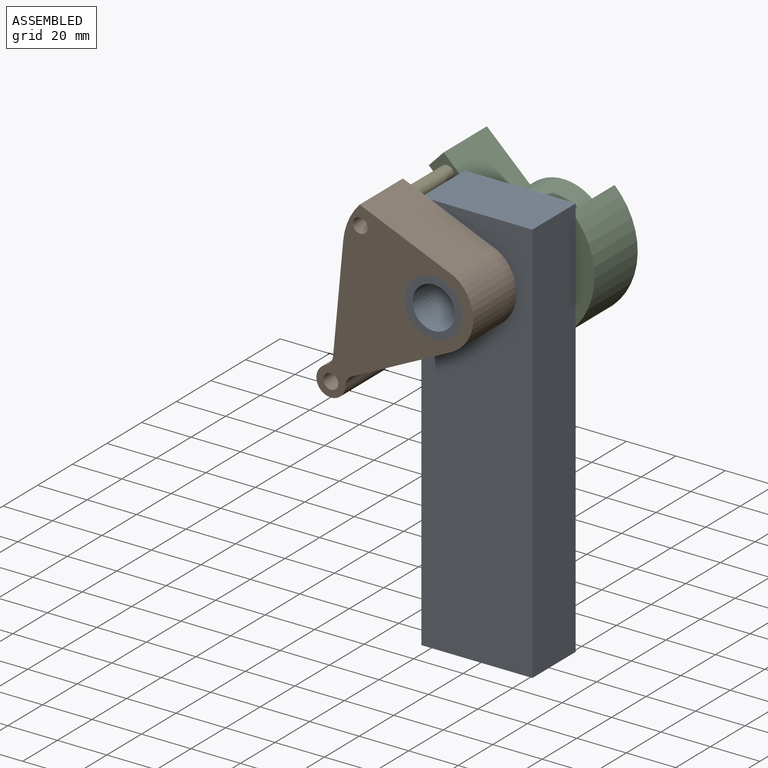
[diagram: assembled view]
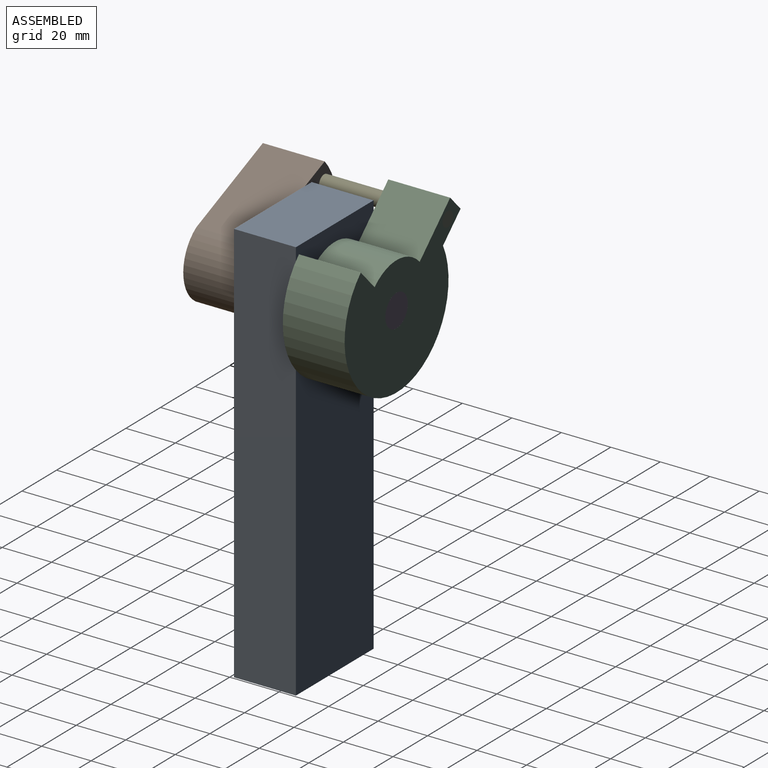
[diagram: assembled view, second angle]
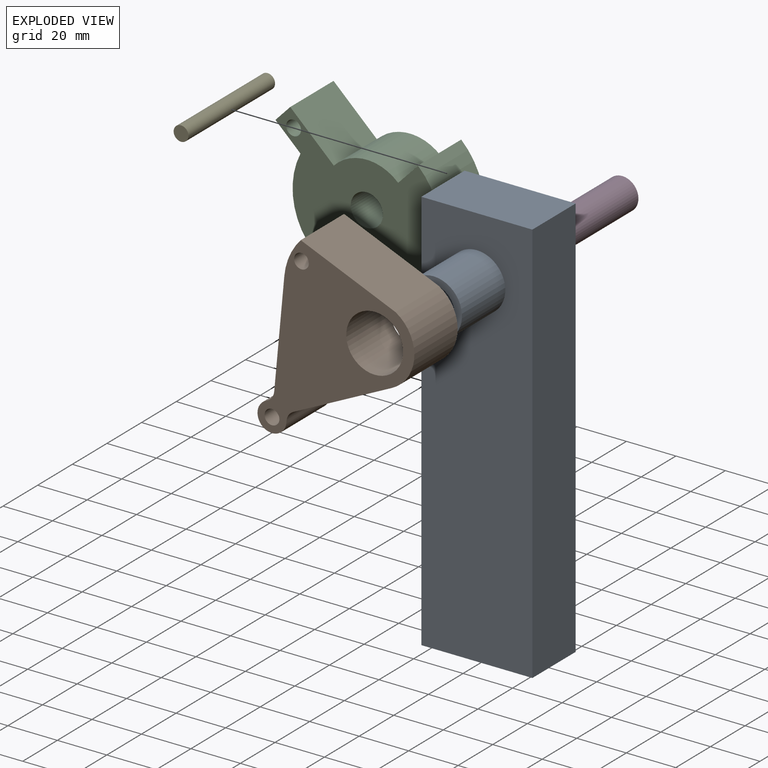
[diagram: exploded view]
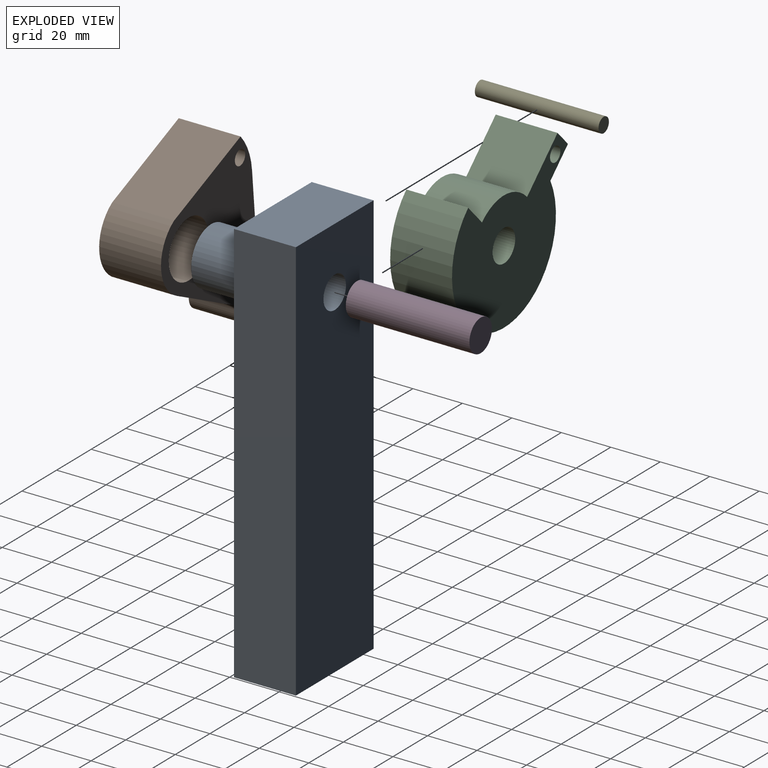
[diagram: exploded view, second angle]
ASSEMBLY  parts=5 mates=3
PART A: 11 faces, bbox 44.9x50x163.8 mm
  f0: plane 17x17mm, normal (0,-1,0), area 94.2mm2, adj f5,f8
  f1: plane 163.83x25mm, normal (1,0,0), area 4095.6mm2, adj f2,f4,f6,f7
  f2: plane 44.87x25mm, normal (0,0,1), area 1121.8mm2, adj f1,f3,f6,f7
  f3: plane 163.83x25mm, normal (-1,0,0), area 4095.6mm2, adj f2,f4,f6,f7
  f4: plane 44.87x25mm, normal (0,0,-1), area 1121.8mm2, adj f1,f3,f6,f7
  f5: cylinder r=6.5mm len=25mm, axis (0,1,0), area 1021mm2, adj f0,f7
  f6: plane 163.83x44.87mm, normal (0,-1,0), area 6936mm2, adj f1,f2,f3,f4,f9
  f7: plane 163.83x44.87mm, normal (0,1,0), area 7218.7mm2, adj f1,f2,f3,f4,f5
  f8: cylinder r=8.5mm len=25mm, axis (0,1,0), area 1335.2mm2, adj f0,f10
  f9: cylinder r=11.5mm len=25mm, axis (0,1,0), area 1806.4mm2, adj f6,f10
  f10: plane 23x23mm, normal (0,-1,0), area 188.5mm2, adj f8,f9
PART B: 13 faces, bbox 58.2x25x78.1 mm
  f0: cylinder r=16.04mm len=25mm, axis (0,1,0), area 855.3mm2, adj f1,f7,f9,f10
  f1: plane 38.88x25mm, normal (-0.36,0,0.93), area 1039.9mm2, adj f0,f2,f9,f10
  f2: cylinder r=25.53mm len=25mm, axis (0,1,0), area 414.5mm2, adj f1,f3,f9,f10
  f3: plane 34.19x26.85mm, normal (-0.79,0,-0.62), area 1086.8mm2, adj f2,f9,f10,f11
  f4: cylinder r=5.86mm len=25mm, axis (0,1,0), area 629.8mm2, adj f9,f10,f11,f12
  f5: cylinder r=3mm len=25mm, axis (0,1,0), area 471.2mm2, adj f9,f10
  f6: cylinder r=11.5mm len=25mm, axis (0,1,0), area 1806.4mm2, adj f9,f10
  f7: plane 41.54x25mm, normal (0.94,0,-0.35), area 1108.7mm2, adj f0,f9,f10,f12
  f8: cylinder r=3mm len=25mm, axis (0,1,0), area 471.2mm2, adj f9,f10
  f9: plane 78.08x58.17mm, normal (0,-1,0), area 1997.5mm2, adj f0,f1,f2,f3,f4,f5,f6,f7
  f10: plane 78.08x58.17mm, normal (0,1,0), area 1997.5mm2, adj f0,f1,f2,f3,f4,f5,f6,f7
  f11: cylinder r=5mm len=25mm, axis (0,1,0), area 136.5mm2, adj f3,f4,f9,f10
  f12: cylinder r=5mm len=25mm, axis (0,1,0), area 136.5mm2, adj f4,f7,f9,f10
PART C: 10 faces, bbox 72.7x25x60 mm
  f0: plane 25x24.27mm, normal (0,0,1), area 606.6mm2, adj f1,f7,f8,f9
  f1: plane 25x8.7mm, normal (-1,0,0), area 217.5mm2, adj f0,f2,f8,f9
  f2: plane 25x13.97mm, normal (0,0,-1), area 349.3mm2, adj f1,f3,f8,f9
  f3: cylinder r=30mm len=60mm, axis (0,1,0), area 3313.6mm2, adj f2,f4,f8,f9
  f4: plane 25x11.58mm, normal (-1,0,0), area 289.6mm2, adj f3,f7,f8,f9
  f5: cylinder r=3mm len=25mm, axis (0,1,0), area 471.2mm2, adj f8,f9
  f6: cylinder r=6.5mm len=25mm, axis (0,1,0), area 1021mm2, adj f8,f9
  f7: cylinder r=18.42mm len=25mm, axis (0,1,0), area 723.2mm2, adj f0,f4,f8,f9
  f8: plane 72.68x60mm, normal (0,-1,0), area 2340mm2, adj f0,f1,f2,f3,f4,f5,f6,f7
  f9: plane 72.68x60mm, normal (0,1,0), area 2340mm2, adj f0,f1,f2,f3,f4,f5,f6,f7
PART D: 3 faces, bbox 13x50x13 mm
  f0: cylinder r=6.5mm len=50mm, axis (0,1,0), area 2042mm2, adj f1,f2
  f1: plane 13x13mm, normal (0,-1,0), area 132.7mm2, adj f0
  f2: plane 13x13mm, normal (0,1,0), area 132.7mm2, adj f0
PART E: 3 faces, bbox 6x50x6 mm
  f0: cylinder r=3mm len=50mm, axis (0,-1,0), area 942.5mm2, adj f1,f2
  f1: plane 6x6mm, normal (0,1,0), area 28.3mm2, adj f0
  f2: plane 6x6mm, normal (0,-1,0), area 28.3mm2, adj f0
PLACE A t=(-37.89,-10.04,-1)mm fixed
PLACE B rot(axis=(0,1,0),43.5deg) t=(-37.89,-35.04,55.91)mm
PLACE C rot(axis=(0,1,0),43.5deg) t=(-37.89,14.96,55.91)mm
PLACE D rot(axis=(0,1,0),2.6deg) t=(-37.89,14.96,55.91)mm
PLACE E rot(axis=(0,1,0),43.5deg) t=(-37.89,-35.04,55.91)mm
MATE fastened E.f0 <-> C.f5  axis (0,1,0) through (-67.48,14.96,78.03)mm
MATE revolute D.f0 <-> A.f5  axis (0,-1,0) through (-37.89,-35.04,55.91)mm
MATE revolute B.f6 <-> A.f5  axis (0,1,0) through (-37.89,-35.04,55.91)mm
